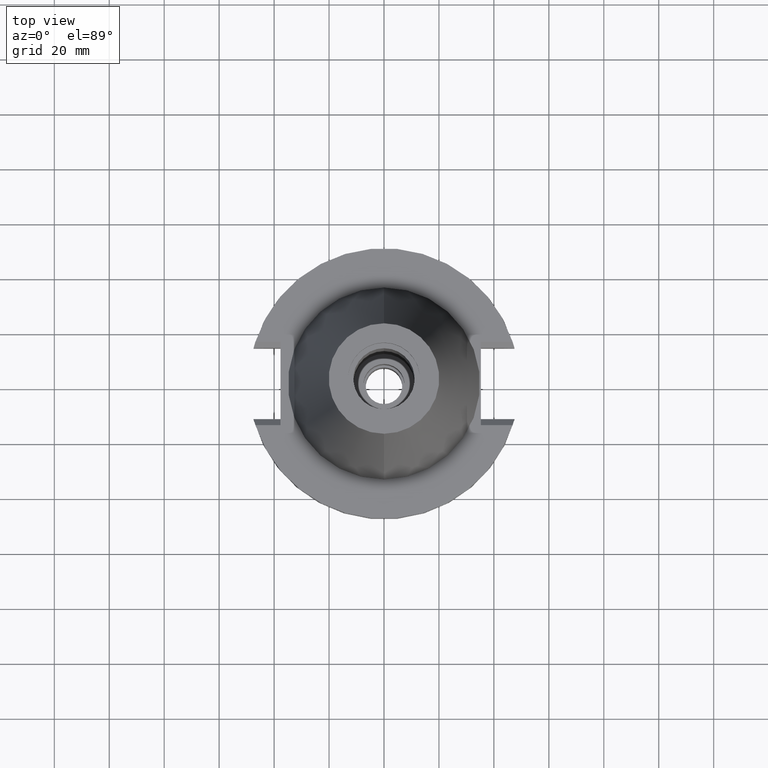
[diagram: clean part render]
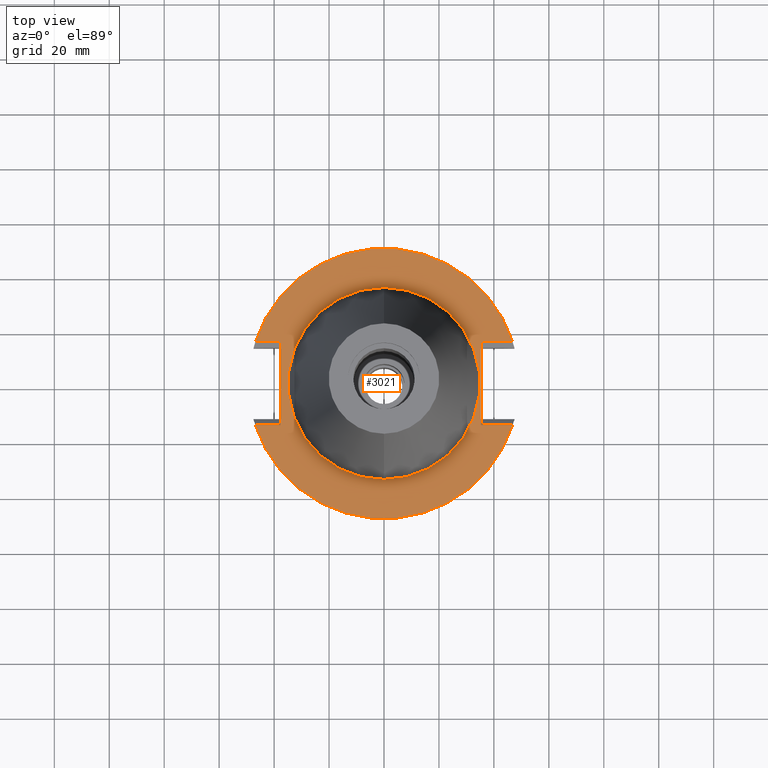
[diagram: same view with one face highlighted and labeled with its STEP entity id]
A machine part, top view. The second image highlights one B-rep face of the part: STEP entity #3021.
In plain terms, the highlighted planar face has unit normal (0, 0, -1).
Its self-contained STEP definition (entity closure, byte-faithful):
#5 = CARTESIAN_POINT ( 'NONE',  ( -37.67999999999999972, -15.15499999999999936, -1.500000000000000000 ) ) ;
#39 = EDGE_CURVE ( 'NONE', #2833, #525, #1431, .T. ) ;
#40 = EDGE_CURVE ( 'NONE', #3248, #2833, #2736, .T. ) ;
#42 = DIRECTION ( 'NONE',  ( 0.0000000000000000000, 0.0000000000000000000, 1.000000000000000000 ) ) ;
#54 = DIRECTION ( 'NONE',  ( 0.0000000000000000000, 1.000000000000000000, 0.0000000000000000000 ) ) ;
#78 = AXIS2_PLACEMENT_3D ( 'NONE', #856, #2171, #2937 ) ;
#94 = ORIENTED_EDGE ( 'NONE', *, *, #2544, .F. ) ;
#96 = CIRCLE ( 'NONE', #2435, 49.21249999999999858 ) ;
#175 = VERTEX_POINT ( 'NONE', #1877 ) ;
#187 = EDGE_CURVE ( 'NONE', #3248, #404, #2364, .T. ) ;
#228 = EDGE_CURVE ( 'NONE', #175, #1210, #1559, .T. ) ;
#394 = CARTESIAN_POINT ( 'NONE',  ( 0.0000000000000000000, 2.604272650726999704E-14, -1.500000000000000000 ) ) ;
#404 = VERTEX_POINT ( 'NONE', #2784 ) ;
#525 = VERTEX_POINT ( 'NONE', #1857 ) ;
#528 = VERTEX_POINT ( 'NONE', #2423 ) ;
#569 = ORIENTED_EDGE ( 'NONE', *, *, #40, .F. ) ;
#626 = DIRECTION ( 'NONE',  ( 0.0000000000000000000, -1.000000000000000000, 0.0000000000000000000 ) ) ;
#628 = CARTESIAN_POINT ( 'NONE',  ( 0.0000000000000000000, 2.604272650726999704E-14, -1.500000000000000000 ) ) ;
#641 = ORIENTED_EDGE ( 'NONE', *, *, #969, .F. ) ;
#647 = CARTESIAN_POINT ( 'NONE',  ( 35.27000000000000313, -15.15499999999999936, -1.500000000000000000 ) ) ;
#758 = ORIENTED_EDGE ( 'NONE', *, *, #1100, .F. ) ;
#802 = FACE_OUTER_BOUND ( 'NONE', #2969, .T. ) ;
#836 = CIRCLE ( 'NONE', #78, 34.92499999999999716 ) ;
#856 = CARTESIAN_POINT ( 'NONE',  ( 0.0000000000000000000, 2.604272650726999704E-14, -1.500000000000000000 ) ) ;
#869 = VERTEX_POINT ( 'NONE', #2728 ) ;
#884 = CIRCLE ( 'NONE', #1307, 49.21249999999999858 ) ;
#891 = DIRECTION ( 'NONE',  ( 0.0000000000000000000, 1.000000000000000000, 0.0000000000000000000 ) ) ;
#919 = DIRECTION ( 'NONE',  ( 0.0000000000000000000, 0.0000000000000000000, -1.000000000000000000 ) ) ;
#924 = DIRECTION ( 'NONE',  ( 0.0000000000000000000, -1.000000000000000000, 0.0000000000000000000 ) ) ;
#969 = EDGE_CURVE ( 'NONE', #1210, #404, #96, .T. ) ;
#1006 = LINE ( 'NONE', #5, #1879 ) ;
#1077 = CARTESIAN_POINT ( 'NONE',  ( 0.0000000000000000000, 2.604272650726999704E-14, -1.500000000000000000 ) ) ;
#1082 = CARTESIAN_POINT ( 'NONE',  ( 35.27000000000000313, 15.15499999999999936, -1.500000000000000000 ) ) ;
#1100 = EDGE_CURVE ( 'NONE', #525, #2284, #884, .T. ) ;
#1210 = VERTEX_POINT ( 'NONE', #2512 ) ;
#1307 = AXIS2_PLACEMENT_3D ( 'NONE', #394, #919, #626 ) ;
#1325 = PLANE ( 'NONE',  #2024 ) ;
#1431 = LINE ( 'NONE', #647, #3041 ) ;
#1432 = AXIS2_PLACEMENT_3D ( 'NONE', #628, #42, #891 ) ;
#1488 = CIRCLE ( 'NONE', #1432, 34.92499999999999716 ) ;
#1534 = FACE_BOUND ( 'NONE', #2276, .T. ) ;
#1559 = LINE ( 'NONE', #2541, #3256 ) ;
#1669 = ORIENTED_EDGE ( 'NONE', *, *, #39, .F. ) ;
#1688 = ORIENTED_EDGE ( 'NONE', *, *, #228, .F. ) ;
#1765 = EDGE_CURVE ( 'NONE', #869, #2284, #1006, .T. ) ;
#1845 = LINE ( 'NONE', #2317, #2379 ) ;
#1857 = CARTESIAN_POINT ( 'NONE',  ( 46.82089417396999664, -15.15499999999999936, -1.500000000000000000 ) ) ;
#1877 = CARTESIAN_POINT ( 'NONE',  ( -37.67999999999999972, 15.15499999999999936, -1.500000000000000000 ) ) ;
#1879 = VECTOR ( 'NONE', #3089, 1000.000000000000000 ) ;
#1896 = DIRECTION ( 'NONE',  ( 1.000000000000000000, 0.0000000000000000000, 0.0000000000000000000 ) ) ;
#1921 = ORIENTED_EDGE ( 'NONE', *, *, #1765, .T. ) ;
#1945 = VECTOR ( 'NONE', #1896, 1000.000000000000000 ) ;
#1973 = ORIENTED_EDGE ( 'NONE', *, *, #3154, .F. ) ;
#2012 = DIRECTION ( 'NONE',  ( -1.000000000000000000, -1.049386061166000038E-14, 0.0000000000000000000 ) ) ;
#2024 = AXIS2_PLACEMENT_3D ( 'NONE', #3090, #2616, #2057 ) ;
#2047 = ORIENTED_EDGE ( 'NONE', *, *, #187, .T. ) ;
#2057 = DIRECTION ( 'NONE',  ( 0.0000000000000000000, -1.000000000000000000, 0.0000000000000000000 ) ) ;
#2171 = DIRECTION ( 'NONE',  ( 0.0000000000000000000, 0.0000000000000000000, 1.000000000000000000 ) ) ;
#2210 = DIRECTION ( 'NONE',  ( 1.000000000000000000, 0.0000000000000000000, 0.0000000000000000000 ) ) ;
#2225 = CARTESIAN_POINT ( 'NONE',  ( 35.27000000000000313, 15.15499999999999936, -1.500000000000000000 ) ) ;
#2239 = VERTEX_POINT ( 'NONE', #2673 ) ;
#2276 = EDGE_LOOP ( 'NONE', ( #2493, #1973 ) ) ;
#2284 = VERTEX_POINT ( 'NONE', #3297 ) ;
#2317 = CARTESIAN_POINT ( 'NONE',  ( -37.67999999999999972, -15.15499999999999936, -1.500000000000000000 ) ) ;
#2364 = LINE ( 'NONE', #1082, #1945 ) ;
#2379 = VECTOR ( 'NONE', #2835, 1000.000000000000000 ) ;
#2423 = CARTESIAN_POINT ( 'NONE',  ( 0.0000000000000000000, 34.92499999999999716, -1.500000000000000000 ) ) ;
#2435 = AXIS2_PLACEMENT_3D ( 'NONE', #1077, #2890, #54 ) ;
#2493 = ORIENTED_EDGE ( 'NONE', *, *, #3185, .F. ) ;
#2512 = CARTESIAN_POINT ( 'NONE',  ( -46.82089417396999664, 15.15499999999999936, -1.500000000000000000 ) ) ;
#2541 = CARTESIAN_POINT ( 'NONE',  ( -37.67999999999999972, 15.15499999999999936, -1.500000000000000000 ) ) ;
#2544 = EDGE_CURVE ( 'NONE', #869, #175, #1845, .T. ) ;
#2609 = VECTOR ( 'NONE', #924, 1000.000000000000000 ) ;
#2616 = DIRECTION ( 'NONE',  ( 0.0000000000000000000, 0.0000000000000000000, -1.000000000000000000 ) ) ;
#2673 = CARTESIAN_POINT ( 'NONE',  ( 0.0000000000000000000, -34.92499999999999716, -1.500000000000000000 ) ) ;
#2728 = CARTESIAN_POINT ( 'NONE',  ( -37.67999999999999972, -15.15499999999999936, -1.500000000000000000 ) ) ;
#2736 = LINE ( 'NONE', #2225, #2609 ) ;
#2784 = CARTESIAN_POINT ( 'NONE',  ( 46.82089417396999664, 15.15499999999999936, -1.500000000000000000 ) ) ;
#2833 = VERTEX_POINT ( 'NONE', #3282 ) ;
#2835 = DIRECTION ( 'NONE',  ( 0.0000000000000000000, 1.000000000000000000, 0.0000000000000000000 ) ) ;
#2890 = DIRECTION ( 'NONE',  ( 0.0000000000000000000, 0.0000000000000000000, -1.000000000000000000 ) ) ;
#2917 = CARTESIAN_POINT ( 'NONE',  ( 35.27000000000000313, 15.15499999999999936, -1.500000000000000000 ) ) ;
#2937 = DIRECTION ( 'NONE',  ( 0.0000000000000000000, -1.000000000000000000, 0.0000000000000000000 ) ) ;
#2969 = EDGE_LOOP ( 'NONE', ( #2047, #641, #1688, #94, #1921, #758, #1669, #569 ) ) ;
#3021 = ADVANCED_FACE ( 'NONE', ( #802, #1534 ), #1325, .F. ) ;
#3041 = VECTOR ( 'NONE', #2210, 1000.000000000000000 ) ;
#3089 = DIRECTION ( 'NONE',  ( -1.000000000000000000, 1.049386061166000038E-14, 0.0000000000000000000 ) ) ;
#3090 = CARTESIAN_POINT ( 'NONE',  ( 0.0000000000000000000, 1.206277097159999845E-14, -1.500000000000000000 ) ) ;
#3154 = EDGE_CURVE ( 'NONE', #2239, #528, #836, .T. ) ;
#3185 = EDGE_CURVE ( 'NONE', #528, #2239, #1488, .T. ) ;
#3248 = VERTEX_POINT ( 'NONE', #2917 ) ;
#3256 = VECTOR ( 'NONE', #2012, 1000.000000000000000 ) ;
#3282 = CARTESIAN_POINT ( 'NONE',  ( 35.27000000000000313, -15.15499999999999936, -1.500000000000000000 ) ) ;
#3297 = CARTESIAN_POINT ( 'NONE',  ( -46.82089417396999664, -15.15499999999999936, -1.500000000000000000 ) ) ;